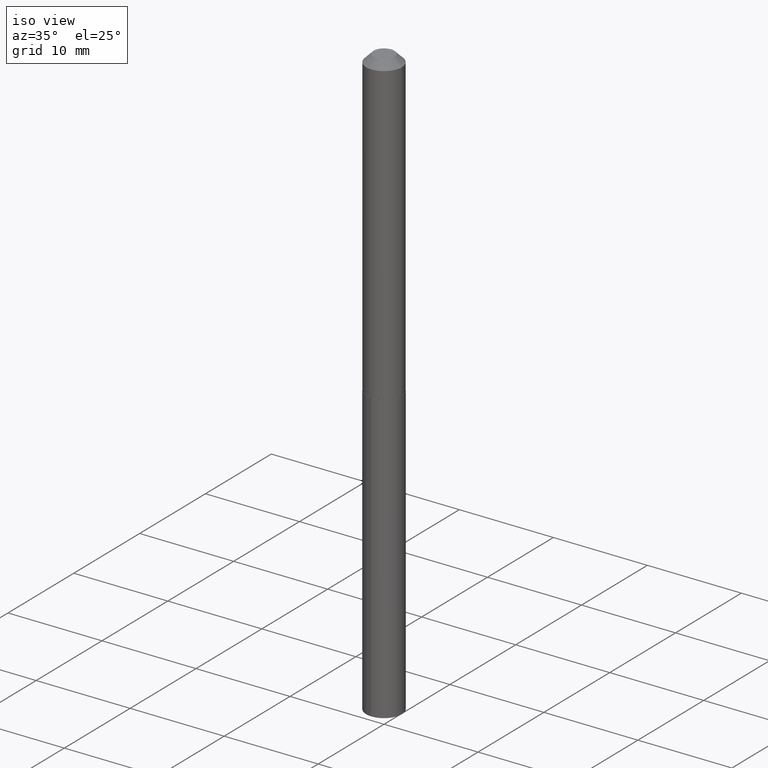
[diagram: clean part render]
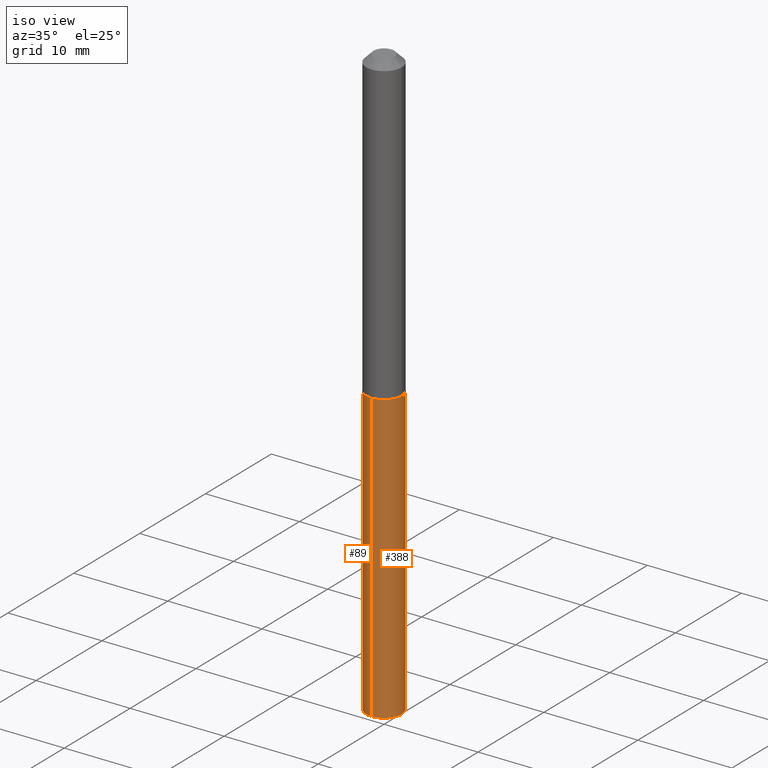
[diagram: same view with one multi-face feature highlighted, each face labeled with its STEP entity id]
A machine part, iso view. The highlighted faces form ONE feature: a constant-radius fillet chain: 2 tangent blend faces with common blend radius 1.8986 mm. The faces share edges in the B-rep.
Their STEP definitions:
[1] entity #89 (Cylinder):
#12 = EDGE_CURVE ( 'NONE', #117, #235, #221, .T. ) ;
#13 = DIRECTION ( 'NONE',  ( -2.445537241737406586E-29, 3.491383335237185366E-15, 1.000000000000000000 ) ) ;
#29 = DIRECTION ( 'NONE',  ( -2.445537241737406586E-29, 3.491383335237185366E-15, 1.000000000000000000 ) ) ;
#53 = ORIENTED_EDGE ( 'NONE', *, *, #113, .T. ) ;
#64 = DIRECTION ( 'NONE',  ( -2.445537241737406586E-29, 3.491383335237185366E-15, 1.000000000000000000 ) ) ;
#71 = AXIS2_PLACEMENT_3D ( 'NONE', #81, #29, #178 ) ;
#81 = CARTESIAN_POINT ( 'NONE',  ( 6.064773723490612913E-29, -8.658653621139226113E-15, -2.479970797865774124 ) ) ;
#82 = EDGE_CURVE ( 'NONE', #235, #294, #285, .T. ) ;
#86 = AXIS2_PLACEMENT_3D ( 'NONE', #284, #13, #339 ) ;
#89 = ADVANCED_FACE ( 'NONE', ( #130 ), #347, .T. ) ;
#95 = CIRCLE ( 'NONE', #71, 0.07474999999999999700 ) ;
#101 = VECTOR ( 'NONE', #249, 39.37007874015748143 ) ;
#109 = CARTESIAN_POINT ( 'NONE',  ( 5.311306949807357085E-16, 0.07474999999999555611, -1.274500000000000188 ) ) ;
#113 = EDGE_CURVE ( 'NONE', #117, #231, #95, .T. ) ;
#117 = VERTEX_POINT ( 'NONE', #119 ) ;
#119 = CARTESIAN_POINT ( 'NONE',  ( 5.311306949807354127E-16, 0.07474999999999132339, -2.479970797865774124 ) ) ;
#121 = EDGE_LOOP ( 'NONE', ( #277, #53, #145, #266 ) ) ;
#130 = FACE_OUTER_BOUND ( 'NONE', #121, .T. ) ;
#143 = CARTESIAN_POINT ( 'NONE',  ( -5.219764601570171425E-16, -0.07475000000000443789, -1.274499999999999744 ) ) ;
#145 = ORIENTED_EDGE ( 'NONE', *, *, #159, .T. ) ;
#159 = EDGE_CURVE ( 'NONE', #231, #294, #197, .T. ) ;
#165 = CARTESIAN_POINT ( 'NONE',  ( -5.219764601569876588E-16, -0.07475000000000864286, -2.479970797865774124 ) ) ;
#178 = DIRECTION ( 'NONE',  ( -6.982962677686266711E-15, -1.000000000000000000, 0.000000000000000000 ) ) ;
#197 = LINE ( 'NONE', #260, #322 ) ;
#221 = LINE ( 'NONE', #311, #101 ) ;
#231 = VERTEX_POINT ( 'NONE', #165 ) ;
#235 = VERTEX_POINT ( 'NONE', #109 ) ;
#249 = DIRECTION ( 'NONE',  ( -2.445537241737406306E-29, 3.491383335237185366E-15, 1.000000000000000000 ) ) ;
#260 = CARTESIAN_POINT ( 'NONE',  ( -5.219764601570172411E-16, -0.07475000000000445177, -1.274499999999999744 ) ) ;
#266 = ORIENTED_EDGE ( 'NONE', *, *, #82, .F. ) ;
#271 = AXIS2_PLACEMENT_3D ( 'NONE', #315, #64, #326 ) ;
#277 = ORIENTED_EDGE ( 'NONE', *, *, #12, .F. ) ;
#284 = CARTESIAN_POINT ( 'NONE',  ( 3.116749993482956808E-29, -4.449892966355589302E-15, -1.274499999999999966 ) ) ;
#285 = CIRCLE ( 'NONE', #86, 0.07474999999999999700 ) ;
#294 = VERTEX_POINT ( 'NONE', #143 ) ;
#311 = CARTESIAN_POINT ( 'NONE',  ( 5.311306949807060276E-16, 0.07474999999999555611, -1.274500000000000188 ) ) ;
#315 = CARTESIAN_POINT ( 'NONE',  ( 3.116749993482956808E-29, -4.449892966355589302E-15, -1.274499999999999966 ) ) ;
#322 = VECTOR ( 'NONE', #380, 39.37007874015748143 ) ;
#326 = DIRECTION ( 'NONE',  ( -6.982962677686266711E-15, -1.000000000000000000, 3.654646145370252101E-15 ) ) ;
#339 = DIRECTION ( 'NONE',  ( -6.982962677686265133E-15, -1.000000000000000000, 3.654646145370252101E-15 ) ) ;
#347 = CYLINDRICAL_SURFACE ( 'NONE', #271, 0.07474999999999999700 ) ;
#380 = DIRECTION ( 'NONE',  ( -2.445537241737406306E-29, 3.491383335237185366E-15, 1.000000000000000000 ) ) ;
[2] entity #388 (Cylinder):
#12 = EDGE_CURVE ( 'NONE', #117, #235, #221, .T. ) ;
#38 = ORIENTED_EDGE ( 'NONE', *, *, #183, .T. ) ;
#41 = AXIS2_PLACEMENT_3D ( 'NONE', #367, #148, #364 ) ;
#97 = DIRECTION ( 'NONE',  ( -6.982962677686265133E-15, -1.000000000000000000, 3.654646145370252101E-15 ) ) ;
#101 = VECTOR ( 'NONE', #249, 39.37007874015748143 ) ;
#107 = CYLINDRICAL_SURFACE ( 'NONE', #41, 0.07474999999999999700 ) ;
#109 = CARTESIAN_POINT ( 'NONE',  ( 5.311306949807357085E-16, 0.07474999999999555611, -1.274500000000000188 ) ) ;
#110 = AXIS2_PLACEMENT_3D ( 'NONE', #242, #205, #97 ) ;
#117 = VERTEX_POINT ( 'NONE', #119 ) ;
#119 = CARTESIAN_POINT ( 'NONE',  ( 5.311306949807354127E-16, 0.07474999999999132339, -2.479970797865774124 ) ) ;
#124 = AXIS2_PLACEMENT_3D ( 'NONE', #199, #262, #141 ) ;
#141 = DIRECTION ( 'NONE',  ( -6.982962677686266711E-15, -1.000000000000000000, 0.000000000000000000 ) ) ;
#143 = CARTESIAN_POINT ( 'NONE',  ( -5.219764601570171425E-16, -0.07475000000000443789, -1.274499999999999744 ) ) ;
#148 = DIRECTION ( 'NONE',  ( -2.445537241737406586E-29, 3.491383335237185366E-15, 1.000000000000000000 ) ) ;
#159 = EDGE_CURVE ( 'NONE', #231, #294, #197, .T. ) ;
#165 = CARTESIAN_POINT ( 'NONE',  ( -5.219764601569876588E-16, -0.07475000000000864286, -2.479970797865774124 ) ) ;
#183 = EDGE_CURVE ( 'NONE', #231, #117, #220, .T. ) ;
#186 = EDGE_LOOP ( 'NONE', ( #38, #192, #362, #217 ) ) ;
#192 = ORIENTED_EDGE ( 'NONE', *, *, #12, .T. ) ;
#197 = LINE ( 'NONE', #260, #322 ) ;
#199 = CARTESIAN_POINT ( 'NONE',  ( 6.064773723490612913E-29, -8.658653621139226113E-15, -2.479970797865774124 ) ) ;
#205 = DIRECTION ( 'NONE',  ( -2.445537241737406586E-29, 3.491383335237185366E-15, 1.000000000000000000 ) ) ;
#217 = ORIENTED_EDGE ( 'NONE', *, *, #159, .F. ) ;
#220 = CIRCLE ( 'NONE', #124, 0.07474999999999999700 ) ;
#221 = LINE ( 'NONE', #311, #101 ) ;
#223 = EDGE_CURVE ( 'NONE', #294, #235, #226, .T. ) ;
#226 = CIRCLE ( 'NONE', #110, 0.07474999999999999700 ) ;
#231 = VERTEX_POINT ( 'NONE', #165 ) ;
#235 = VERTEX_POINT ( 'NONE', #109 ) ;
#242 = CARTESIAN_POINT ( 'NONE',  ( 3.116749993482956808E-29, -4.449892966355589302E-15, -1.274499999999999966 ) ) ;
#249 = DIRECTION ( 'NONE',  ( -2.445537241737406306E-29, 3.491383335237185366E-15, 1.000000000000000000 ) ) ;
#260 = CARTESIAN_POINT ( 'NONE',  ( -5.219764601570172411E-16, -0.07475000000000445177, -1.274499999999999744 ) ) ;
#262 = DIRECTION ( 'NONE',  ( -2.445537241737406586E-29, 3.491383335237185366E-15, 1.000000000000000000 ) ) ;
#289 = FACE_OUTER_BOUND ( 'NONE', #186, .T. ) ;
#294 = VERTEX_POINT ( 'NONE', #143 ) ;
#311 = CARTESIAN_POINT ( 'NONE',  ( 5.311306949807060276E-16, 0.07474999999999555611, -1.274500000000000188 ) ) ;
#322 = VECTOR ( 'NONE', #380, 39.37007874015748143 ) ;
#362 = ORIENTED_EDGE ( 'NONE', *, *, #223, .F. ) ;
#364 = DIRECTION ( 'NONE',  ( -6.982962677686266711E-15, -1.000000000000000000, 3.654646145370252101E-15 ) ) ;
#367 = CARTESIAN_POINT ( 'NONE',  ( 3.116749993482956808E-29, -4.449892966355589302E-15, -1.274499999999999966 ) ) ;
#380 = DIRECTION ( 'NONE',  ( -2.445537241737406306E-29, 3.491383335237185366E-15, 1.000000000000000000 ) ) ;
#388 = ADVANCED_FACE ( 'NONE', ( #289 ), #107, .T. ) ;